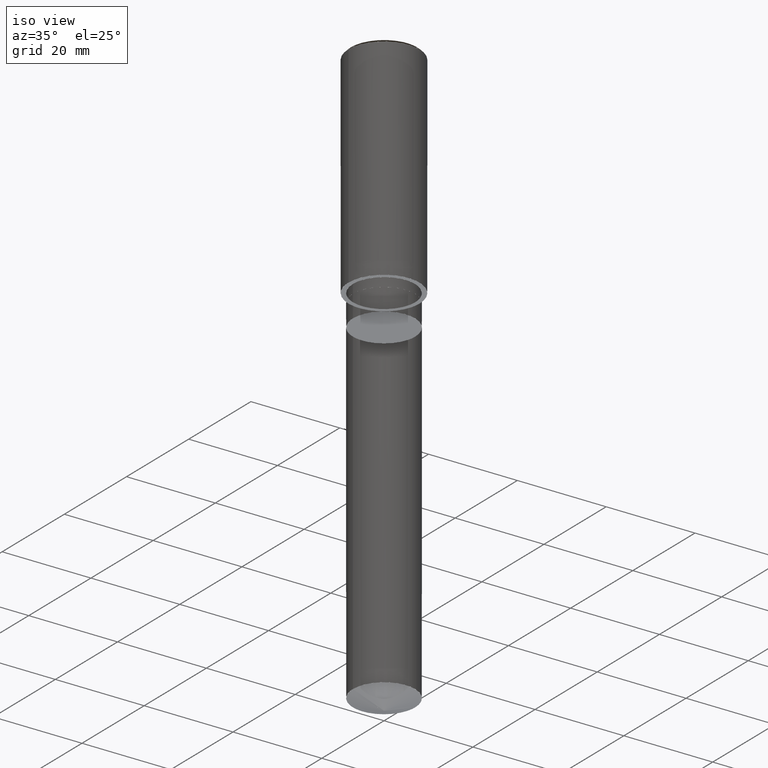
[diagram: clean part render]
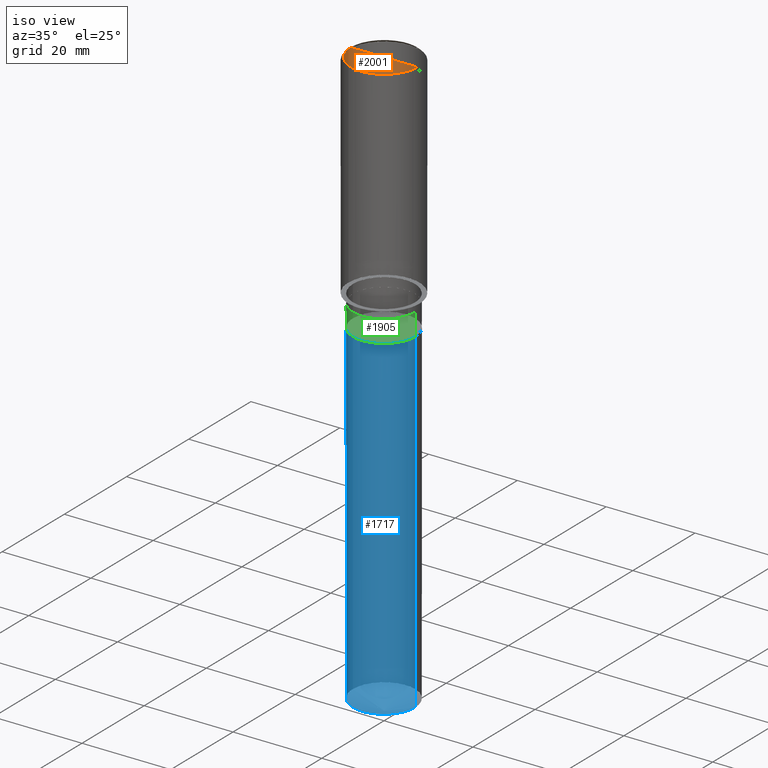
[diagram: same view with three faces highlighted in distinct colors, each labeled with its STEP entity id]
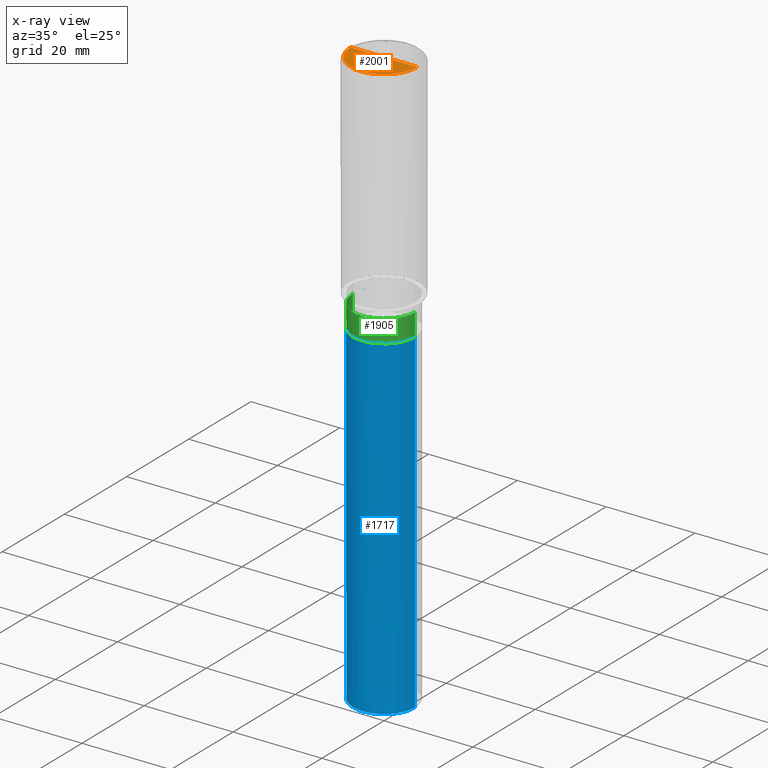
[diagram: x-ray of the same camera — body ghosted, the three highlighted faces saturated]
A machine part, iso view with three faces highlighted in distinct colors.
The next image is the same camera in x-ray (body ghosted, the three faces saturated) — at least one of them is partly hidden behind the body in this view.
Their STEP definitions:

[orange] entity #2001 — the highlighted face is a freeform B-spline surface patch.
#1604=CARTESIAN_POINT('',(7.5,0.0,48.0));
#1608=CARTESIAN_POINT('',(-7.5,0.0,48.0));
#1609=CARTESIAN_POINT('',(0.0,0.0,48.0));
#1622=CARTESIAN_POINT('',(-7.5,-7.5,48.0));
#1623=CARTESIAN_POINT('',(0.0,-7.5,48.0));
#1624=CARTESIAN_POINT('',(7.5,-7.5,48.0));
#1986=(
BOUNDED_SURFACE()
B_SPLINE_SURFACE(1,2,(
(#1608,#1622,#1623,#1624,#1604),
(#1609,#1609,#1609,#1609,#1609)
), .UNSPECIFIED.,.F.,.F.,.F.)
B_SPLINE_SURFACE_WITH_KNOTS((2,2),(3,2,3),(
0.0,1.0),(
0.0,0.5,1.0), .UNSPECIFIED.)
GEOMETRIC_REPRESENTATION_ITEM()
RATIONAL_B_SPLINE_SURFACE(((1.0,0.707106781187,1.0,0.707106781187,1.0),
(1.0,0.707106781187,1.0,0.707106781187,1.0)
))
REPRESENTATION_ITEM('')
SURFACE()
);
#1987=(
BOUNDED_CURVE()
B_SPLINE_CURVE(2,(#1604,#1624,#1623,#1622,#1608),.UNSPECIFIED.,.F.,.F.)
B_SPLINE_CURVE_WITH_KNOTS((3,2,3),
(0.0,0.5,1.0),.UNSPECIFIED.)
CURVE()
GEOMETRIC_REPRESENTATION_ITEM()
RATIONAL_B_SPLINE_CURVE((1.0,0.707106781187,1.0,0.707106781187,1.0))
REPRESENTATION_ITEM('')
);
#1988=(
BOUNDED_CURVE()
B_SPLINE_CURVE(1,(#1608,#1609),.UNSPECIFIED.,.F.,.F.)
B_SPLINE_CURVE_WITH_KNOTS((2,2),
(0.0,1.0),.UNSPECIFIED.)
CURVE()
GEOMETRIC_REPRESENTATION_ITEM()
RATIONAL_B_SPLINE_CURVE((1.0,1.0))
REPRESENTATION_ITEM('')
);
#1989=(
BOUNDED_CURVE()
B_SPLINE_CURVE(1,(#1609,#1604),.UNSPECIFIED.,.F.,.F.)
B_SPLINE_CURVE_WITH_KNOTS((2,2),
(0.0,1.0),.UNSPECIFIED.)
CURVE()
GEOMETRIC_REPRESENTATION_ITEM()
RATIONAL_B_SPLINE_CURVE((1.0,1.0))
REPRESENTATION_ITEM('')
);
#1990=VERTEX_POINT('',#1604);
#1991=VERTEX_POINT('',#1608);
#1992=VERTEX_POINT('',#1609);
#1993=EDGE_CURVE('',#1990,#1991,#1987,.T.);
#1994=EDGE_CURVE('',#1991,#1992,#1988,.T.);
#1995=EDGE_CURVE('',#1992,#1990,#1989,.T.);
#1996=ORIENTED_EDGE('',*,*,#1993,.T.);
#1997=ORIENTED_EDGE('',*,*,#1994,.T.);
#1998=ORIENTED_EDGE('',*,*,#1995,.T.);
#1999=EDGE_LOOP('',(#1996,#1997,#1998));
#2000=FACE_OUTER_BOUND('',#1999,.T.);
#2001=ADVANCED_FACE('',(#2000),#1986,.T.);

[blue] entity #1717 — the highlighted face is a freeform B-spline surface patch.
#1567=CARTESIAN_POINT('',(7.0,0.0,-82.452208360137));
#1571=CARTESIAN_POINT('',(-7.0,0.0,-82.452208360137));
#1572=CARTESIAN_POINT('',(7.0,0.0,-7.0));
#1576=CARTESIAN_POINT('',(-7.0,0.0,-7.0));
#1578=CARTESIAN_POINT('',(-7.0,-7.0,-82.452208360137));
#1579=CARTESIAN_POINT('',(0.0,-7.0,-82.452208360137));
#1580=CARTESIAN_POINT('',(7.0,-7.0,-82.452208360137));
#1581=CARTESIAN_POINT('',(-7.0,-7.0,-7.0));
#1582=CARTESIAN_POINT('',(0.0,-7.0,-7.0));
#1583=CARTESIAN_POINT('',(7.0,-7.0,-7.0));
#1698=(
BOUNDED_SURFACE()
B_SPLINE_SURFACE(1,2,(
(#1571,#1578,#1579,#1580,#1567),
(#1576,#1581,#1582,#1583,#1572)
), .UNSPECIFIED.,.F.,.F.,.F.)
B_SPLINE_SURFACE_WITH_KNOTS((2,2),(3,2,3),(
0.0,1.0),(
0.0,0.5,1.0), .UNSPECIFIED.)
GEOMETRIC_REPRESENTATION_ITEM()
RATIONAL_B_SPLINE_SURFACE(((1.0,0.707106781187,1.0,0.707106781187,1.0),
(1.0,0.707106781187,1.0,0.707106781187,1.0)
))
REPRESENTATION_ITEM('')
SURFACE()
);
#1699=(
BOUNDED_CURVE()
B_SPLINE_CURVE(2,(#1567,#1580,#1579,#1578,#1571),.UNSPECIFIED.,.F.,.F.)
B_SPLINE_CURVE_WITH_KNOTS((3,2,3),
(0.0,0.5,1.0),.UNSPECIFIED.)
CURVE()
GEOMETRIC_REPRESENTATION_ITEM()
RATIONAL_B_SPLINE_CURVE((1.0,0.707106781187,1.0,0.707106781187,1.0))
REPRESENTATION_ITEM('')
);
#1700=(
BOUNDED_CURVE()
B_SPLINE_CURVE(1,(#1571,#1576),.UNSPECIFIED.,.F.,.F.)
B_SPLINE_CURVE_WITH_KNOTS((2,2),
(0.0,1.0),.UNSPECIFIED.)
CURVE()
GEOMETRIC_REPRESENTATION_ITEM()
RATIONAL_B_SPLINE_CURVE((1.0,1.0))
REPRESENTATION_ITEM('')
);
#1701=(
BOUNDED_CURVE()
B_SPLINE_CURVE(2,(#1576,#1581,#1582,#1583,#1572),.UNSPECIFIED.,.F.,.F.)
B_SPLINE_CURVE_WITH_KNOTS((3,2,3),
(0.0,0.5,1.0),.UNSPECIFIED.)
CURVE()
GEOMETRIC_REPRESENTATION_ITEM()
RATIONAL_B_SPLINE_CURVE((1.0,0.707106781187,1.0,0.707106781187,1.0))
REPRESENTATION_ITEM('')
);
#1702=(
BOUNDED_CURVE()
B_SPLINE_CURVE(1,(#1572,#1567),.UNSPECIFIED.,.F.,.F.)
B_SPLINE_CURVE_WITH_KNOTS((2,2),
(0.0,1.0),.UNSPECIFIED.)
CURVE()
GEOMETRIC_REPRESENTATION_ITEM()
RATIONAL_B_SPLINE_CURVE((1.0,1.0))
REPRESENTATION_ITEM('')
);
#1703=VERTEX_POINT('',#1567);
#1704=VERTEX_POINT('',#1571);
#1705=VERTEX_POINT('',#1572);
#1706=VERTEX_POINT('',#1576);
#1707=EDGE_CURVE('',#1703,#1704,#1699,.T.);
#1708=EDGE_CURVE('',#1704,#1706,#1700,.T.);
#1709=EDGE_CURVE('',#1706,#1705,#1701,.T.);
#1710=EDGE_CURVE('',#1705,#1703,#1702,.T.);
#1711=ORIENTED_EDGE('',*,*,#1707,.T.);
#1712=ORIENTED_EDGE('',*,*,#1708,.T.);
#1713=ORIENTED_EDGE('',*,*,#1709,.T.);
#1714=ORIENTED_EDGE('',*,*,#1710,.T.);
#1715=EDGE_LOOP('',(#1711,#1712,#1713,#1714));
#1716=FACE_OUTER_BOUND('',#1715,.T.);
#1717=ADVANCED_FACE('',(#1716),#1698,.T.);

[green] entity #1905 — the highlighted face is a freeform B-spline surface patch.
#1572=CARTESIAN_POINT('',(7.0,0.0,-7.0));
#1576=CARTESIAN_POINT('',(-7.0,0.0,-7.0));
#1581=CARTESIAN_POINT('',(-7.0,-7.0,-7.0));
#1582=CARTESIAN_POINT('',(0.0,-7.0,-7.0));
#1583=CARTESIAN_POINT('',(7.0,-7.0,-7.0));
#1584=CARTESIAN_POINT('',(7.0,0.0,-2.0));
#1588=CARTESIAN_POINT('',(-7.0,0.0,-2.0));
#1610=CARTESIAN_POINT('',(-7.0,-7.0,-2.0));
#1611=CARTESIAN_POINT('',(0.0,-7.0,-2.0));
#1612=CARTESIAN_POINT('',(7.0,-7.0,-2.0));
#1886=(
BOUNDED_SURFACE()
B_SPLINE_SURFACE(1,2,(
(#1576,#1581,#1582,#1583,#1572),
(#1588,#1610,#1611,#1612,#1584)
), .UNSPECIFIED.,.F.,.F.,.F.)
B_SPLINE_SURFACE_WITH_KNOTS((2,2),(3,2,3),(
0.0,1.0),(
0.0,0.5,1.0), .UNSPECIFIED.)
GEOMETRIC_REPRESENTATION_ITEM()
RATIONAL_B_SPLINE_SURFACE(((1.0,0.707106781187,1.0,0.707106781187,1.0),
(1.0,0.707106781187,1.0,0.707106781187,1.0)
))
REPRESENTATION_ITEM('')
SURFACE()
);
#1887=(
BOUNDED_CURVE()
B_SPLINE_CURVE(2,(#1572,#1583,#1582,#1581,#1576),.UNSPECIFIED.,.F.,.F.)
B_SPLINE_CURVE_WITH_KNOTS((3,2,3),
(0.0,0.5,1.0),.UNSPECIFIED.)
CURVE()
GEOMETRIC_REPRESENTATION_ITEM()
RATIONAL_B_SPLINE_CURVE((1.0,0.707106781187,1.0,0.707106781187,1.0))
REPRESENTATION_ITEM('')
);
#1888=(
BOUNDED_CURVE()
B_SPLINE_CURVE(1,(#1576,#1588),.UNSPECIFIED.,.F.,.F.)
B_SPLINE_CURVE_WITH_KNOTS((2,2),
(0.0,1.0),.UNSPECIFIED.)
CURVE()
GEOMETRIC_REPRESENTATION_ITEM()
RATIONAL_B_SPLINE_CURVE((1.0,1.0))
REPRESENTATION_ITEM('')
);
#1889=(
BOUNDED_CURVE()
B_SPLINE_CURVE(2,(#1588,#1610,#1611,#1612,#1584),.UNSPECIFIED.,.F.,.F.)
B_SPLINE_CURVE_WITH_KNOTS((3,2,3),
(0.0,0.5,1.0),.UNSPECIFIED.)
CURVE()
GEOMETRIC_REPRESENTATION_ITEM()
RATIONAL_B_SPLINE_CURVE((1.0,0.707106781187,1.0,0.707106781187,1.0))
REPRESENTATION_ITEM('')
);
#1890=(
BOUNDED_CURVE()
B_SPLINE_CURVE(1,(#1584,#1572),.UNSPECIFIED.,.F.,.F.)
B_SPLINE_CURVE_WITH_KNOTS((2,2),
(0.0,1.0),.UNSPECIFIED.)
CURVE()
GEOMETRIC_REPRESENTATION_ITEM()
RATIONAL_B_SPLINE_CURVE((1.0,1.0))
REPRESENTATION_ITEM('')
);
#1891=VERTEX_POINT('',#1572);
#1892=VERTEX_POINT('',#1576);
#1893=VERTEX_POINT('',#1584);
#1894=VERTEX_POINT('',#1588);
#1895=EDGE_CURVE('',#1891,#1892,#1887,.T.);
#1896=EDGE_CURVE('',#1892,#1894,#1888,.T.);
#1897=EDGE_CURVE('',#1894,#1893,#1889,.T.);
#1898=EDGE_CURVE('',#1893,#1891,#1890,.T.);
#1899=ORIENTED_EDGE('',*,*,#1895,.T.);
#1900=ORIENTED_EDGE('',*,*,#1896,.T.);
#1901=ORIENTED_EDGE('',*,*,#1897,.T.);
#1902=ORIENTED_EDGE('',*,*,#1898,.T.);
#1903=EDGE_LOOP('',(#1899,#1900,#1901,#1902));
#1904=FACE_OUTER_BOUND('',#1903,.T.);
#1905=ADVANCED_FACE('',(#1904),#1886,.T.);